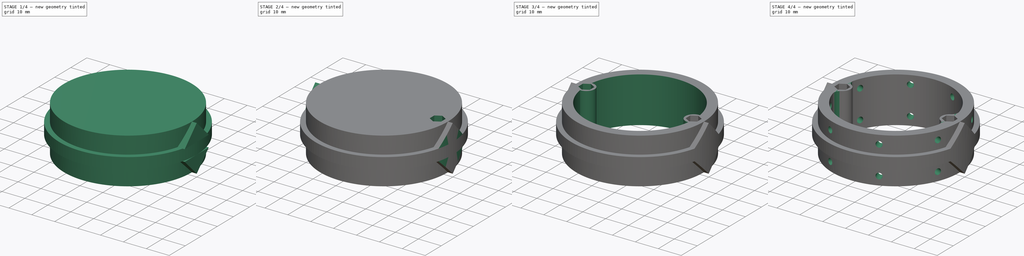
[diagram: build sequence overview — one tinted view per stage of 4, left to right]
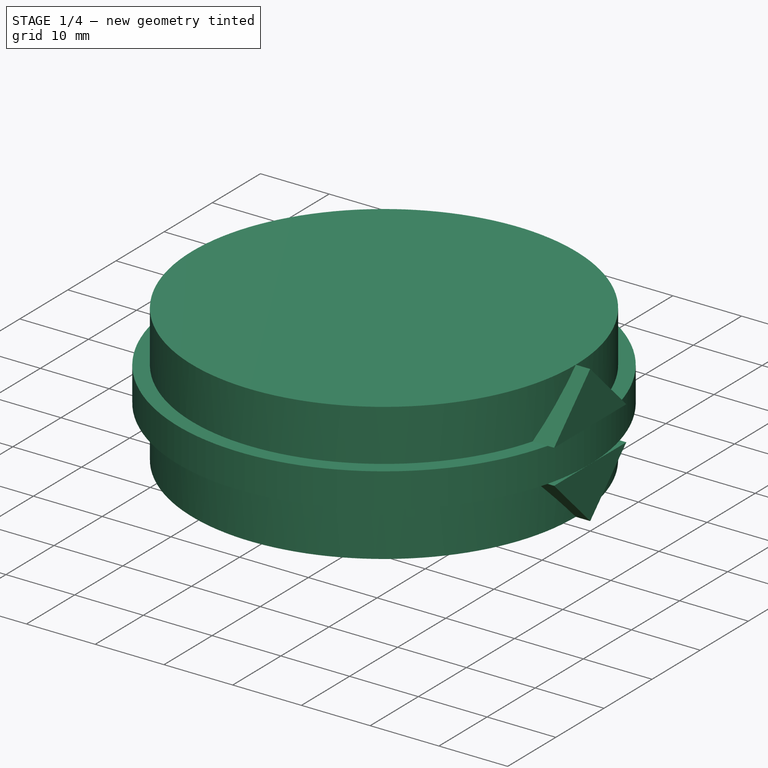
[diagram: stage 1 of 4 — iso view after this stage's code; geometry added in this stage tinted green]
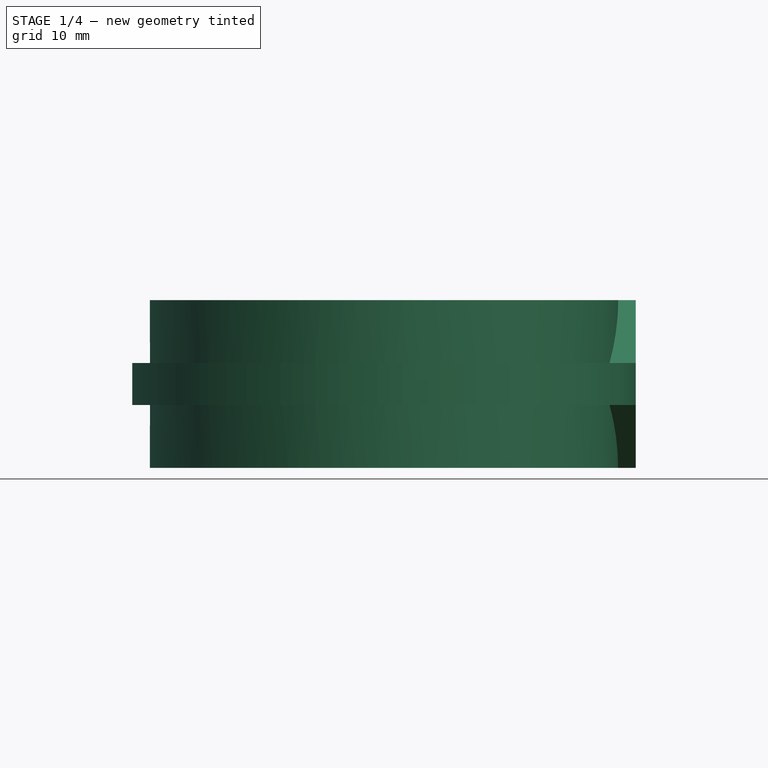
[diagram: stage 1 of 4 — front view after this stage's code; geometry added in this stage tinted green]
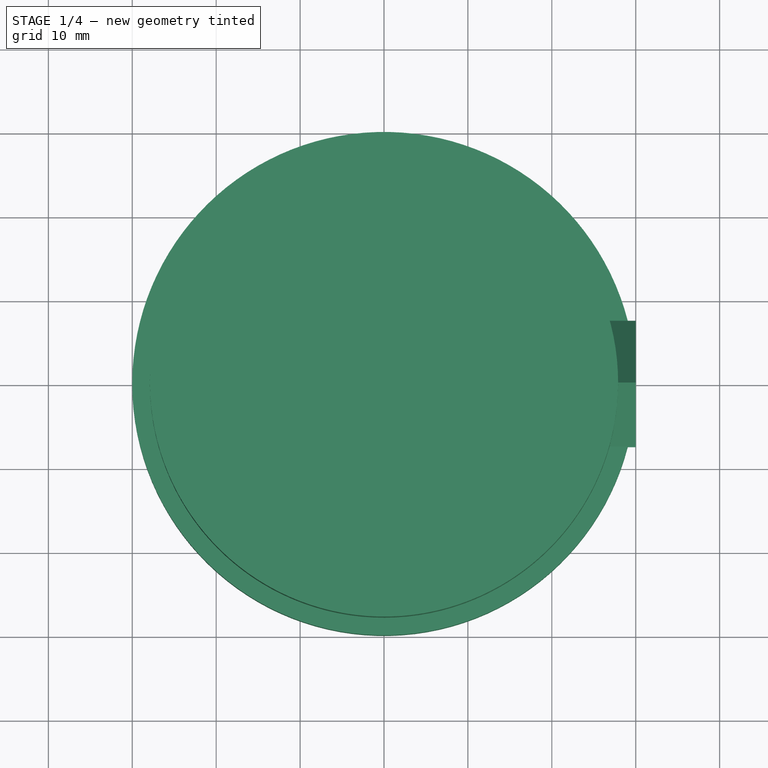
[diagram: stage 1 of 4 — top view after this stage's code; geometry added in this stage tinted green]
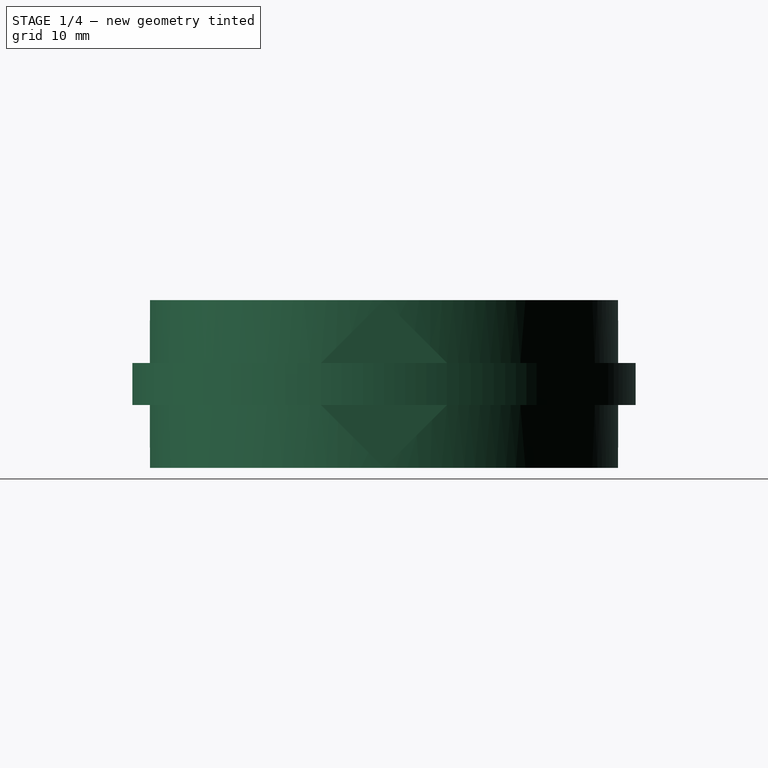
[diagram: stage 1 of 4 — right view after this stage's code; geometry added in this stage tinted green]
FCSTD DOCUMENT  (FreeCAD 1.0R39319 (Git))
Label: mid_closure
License: All rights reserved
objects: Sketcher::SketchObject×12, PartDesign::Pocket×6, PartDesign::Pad×4, PartDesign::Plane×3, PartDesign::PolarPattern×3, PartDesign::Fillet×1, PartDesign::Body×1
note: 67 computed .brp shape members not serialized (recipe doc carries the construction recipe); baked Part::Feature solids carry a one-line shape summary decoded from their .brp

FEATURE [Sketcher::SketchObject] Sketch
  ArcFitTolerance = 1e-06
  AttachmentSupport = -> [XY_Plane]
  FullyConstrained = true
  MakeInternals = false
  MapMode = 5
  sketch-geometry (1):
    g0: Circle CenterX=0 CenterY=0 CenterZ=0 NormalX=0 NormalY=0 NormalZ=1 AngleXU=0 Radius=30
  constraints (2):
    c: Diameter(g0) = 60
    c: Coincident(g0,g-1)
FEATURE [PartDesign::Pad] Pad  label="external_ring"
  Direction = (0,0,1)
  Length = 5
  Length2 = 10
  Profile = -> Sketch
  ReferenceAxis = -> Sketch [N_Axis]
  Refine = true
  Suppressed = false
  Type = 0
FEATURE [Sketcher::SketchObject] Sketch001
  ArcFitTolerance = 1e-06
  AttachmentSupport = -> [Pad]
  FullyConstrained = true
  MakeInternals = false
  MapMode = 5
  Placement = pos=(0,0,0) rot=(1,0,0;3.14159rad)
  sketch-geometry (1):
    g0: Circle CenterX=0 CenterY=0 CenterZ=0 NormalX=0 NormalY=0 NormalZ=1 AngleXU=0 Radius=27.9
  constraints (2):
    c: Diameter(g0) = 55.8
    c: Coincident(g0,g-1)
FEATURE [PartDesign::Pad] Pad001  label="lower_coupling"
  BaseFeature = -> Pad
  Direction = (0,0,-1)
  Length = 7.5
  Length2 = 10
  Profile = -> Sketch001
  ReferenceAxis = -> Sketch001 [N_Axis]
  Refine = true
  Suppressed = false
  Type = 0
FEATURE [Sketcher::SketchObject] Sketch002
  ArcFitTolerance = 1e-06
  AttachmentSupport = -> [Pad001]
  FullyConstrained = true
  MakeInternals = false
  MapMode = 5
  Placement = pos=(0,0,5) rot=(0,0,1;0rad)
  sketch-geometry (1):
    g0: Circle CenterX=0 CenterY=0 CenterZ=0 NormalX=0 NormalY=0 NormalZ=1 AngleXU=0 Radius=27.9
  constraints (2):
    c: Diameter(g0) = 55.8
    c: Coincident(g0,g-1)
FEATURE [PartDesign::Pad] Pad002  label="upper_coupling"
  BaseFeature = -> Pad001
  Direction = (0,0,1)
  Length = 7.5
  Length2 = 10
  Profile = -> Sketch002
  ReferenceAxis = -> Sketch002 [N_Axis]
  Refine = true
  Suppressed = false
  Type = 0
FEATURE [Sketcher::SketchObject] Sketch003
  ArcFitTolerance = 1e-06
  AttachmentSupport = -> [Pad002]
  ExternalGeometry = -> [Pad002]
  FullyConstrained = true
  MakeInternals = false
  MapMode = 5
  Placement = pos=(0,0,5) rot=(0,0,1;0rad)
  sketch-geometry (1):
    g0: LineSegment StartX=0 StartY=0 StartZ=0 EndX=30 EndY=0 EndZ=0
  constraints (3):
    c: Coincident(g0,g-1)
    c: PointOnObject(g0,g-3)
    c: Horizontal(g0)
FEATURE [PartDesign::Plane] DatumPlane
  AttachmentSupport = -> [Sketch003,Pad002]
  Length = 70.7018
  MapMode = 7
  Placement = pos=(30,0,5) rot=(0.57735,-0.57735,-0.57735;2.0944rad)
  ResizeMode = 0
  Width = 60.9333
FEATURE [Sketcher::SketchObject] Sketch004
  ArcFitTolerance = 1e-06
  AttachmentSupport = -> [DatumPlane]
  ExternalGeometry = -> [Pad002]
  FullyConstrained = false
  MakeInternals = false
  MapMode = 5
  Placement = pos=(30,0,5) rot=(0.57735,-0.57735,-0.57735;2.0944rad)
  sketch-geometry (6):
    g0: LineSegment StartX=-7.5 StartY=0 StartZ=0 EndX=8e-16 EndY=7.5 EndZ=0
    g1: LineSegment StartX=7e-16 StartY=7.5 StartZ=0 EndX=7.5 EndY=5e-16 EndZ=0
    g2: LineSegment StartX=7.5 StartY=5e-16 StartZ=0 EndX=-7.5 EndY=0 EndZ=0
    g3: LineSegment StartX=-7.5 StartY=-5 StartZ=0 EndX=7.5 EndY=-5 EndZ=0
    g4: LineSegment StartX=7.5 StartY=-5 StartZ=0 EndX=-8e-16 EndY=-12.5 EndZ=0
    g5: LineSegment StartX=-8e-16 StartY=-12.5 StartZ=0 EndX=-7.5 EndY=-5 EndZ=0
  constraints (13):
    c: PointOnObject(g0,g-6)
    c: Symmetric(g-5,g-5,g0)
    c: Coincident(g1,g2)
    c: Coincident(g2,g0)
    c: Symmetric(g0,g1,g-2)
    c: PointOnObject(g3,g-4)
    c: Coincident(g3,g4)
    c: Symmetric(g-3,g-3,g4)
    c: Coincident(g4,g5)
    c: Coincident(g5,g3)
    c: Symmetric(g3,g3,g-2)
    c: DistanceX(g0,g-1) = 7.5
    c: DistanceX(g3,g-1) = 7.5
FEATURE [PartDesign::Pad] Pad003
  BaseFeature = -> Pad002
  Direction = (-1,0,0)
  Length = 4
  Length2 = 10
  Profile = -> Sketch004
  ReferenceAxis = -> Sketch004 [N_Axis]
  Refine = true
  Suppressed = false
  Type = 0
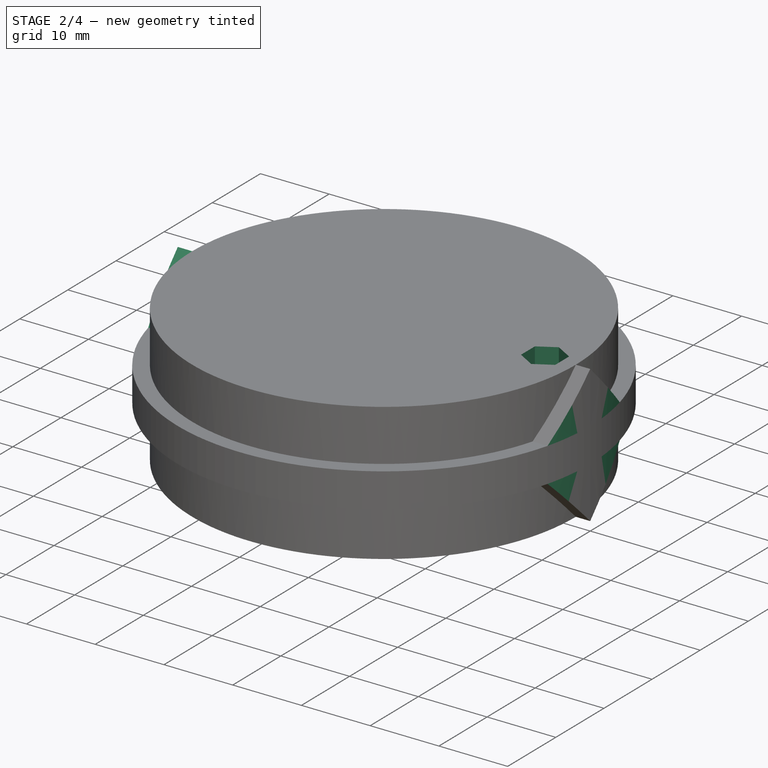
[diagram: stage 2 of 4 — iso view after this stage's code; geometry added in this stage tinted green]
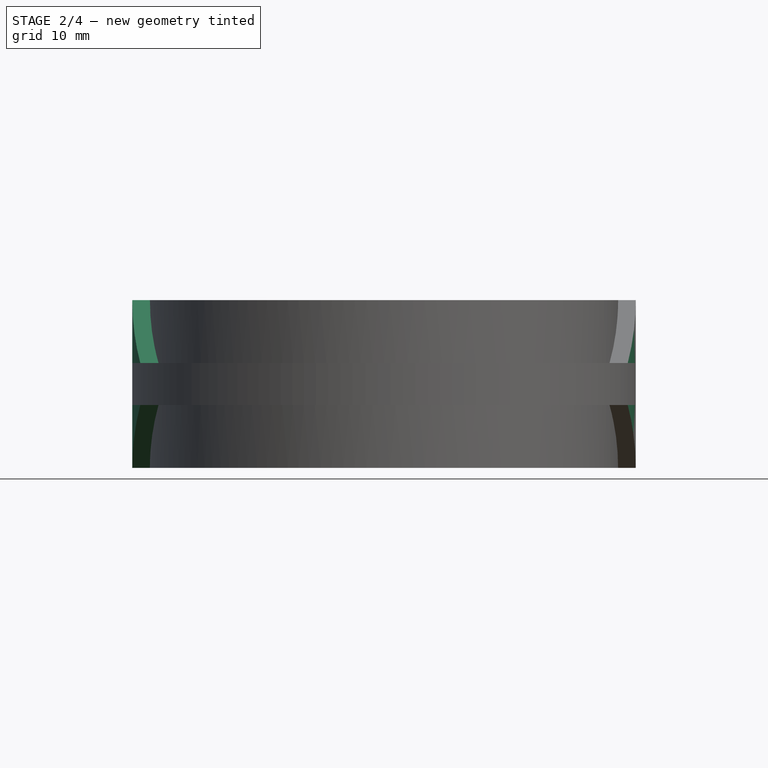
[diagram: stage 2 of 4 — front view after this stage's code; geometry added in this stage tinted green]
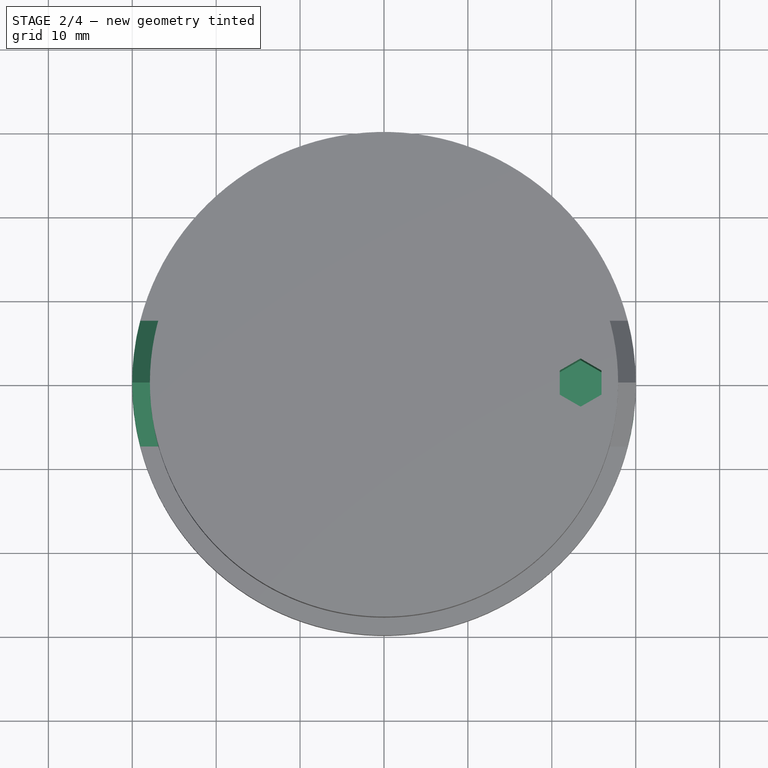
[diagram: stage 2 of 4 — top view after this stage's code; geometry added in this stage tinted green]
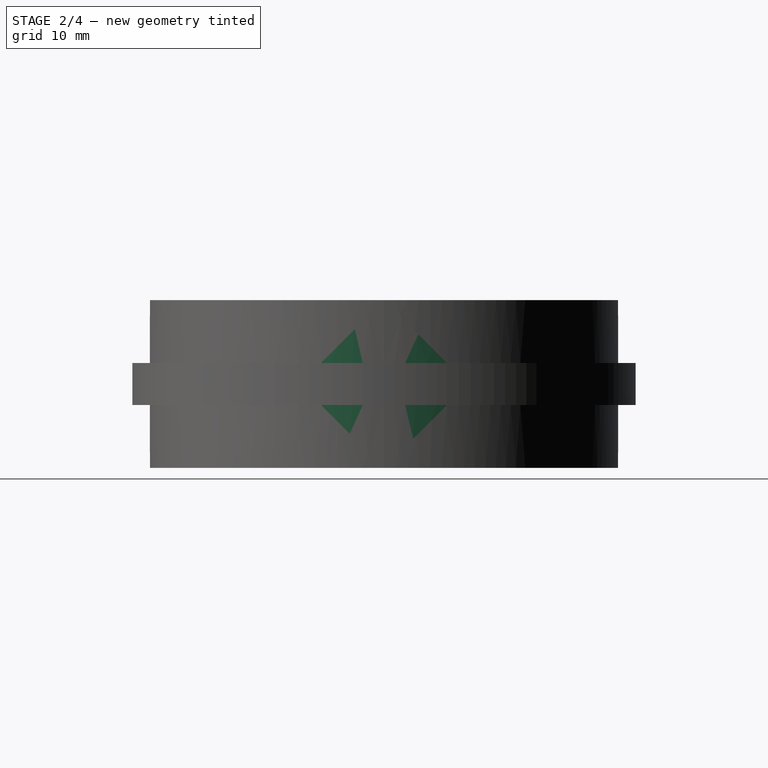
[diagram: stage 2 of 4 — right view after this stage's code; geometry added in this stage tinted green]
FEATURE [PartDesign::PolarPattern] PolarPattern
  Angle = 360
  Axis = -> Z_Axis
  BaseFeature = -> Pad003
  Mode = 0
  Occurrences = 2
  Offset = 120
  Originals = -> [Pad003]
  Refine = true
  Suppressed = false
  TransformMode = 0
FEATURE [Sketcher::SketchObject] Sketch005
  ArcFitTolerance = 1e-06
  AttachmentSupport = -> [PolarPattern]
  ExternalGeometry = -> [PolarPattern]
  FullyConstrained = false
  MakeInternals = false
  MapMode = 5
  Placement = pos=(0,0,12.5) rot=(0,0,1;0rad)
  sketch-geometry (2):
    g0: Circle CenterX=0 CenterY=0 CenterZ=0 NormalX=0 NormalY=0 NormalZ=1 AngleXU=0 Radius=30
    g1: Circle CenterX=0 CenterY=0 CenterZ=0 NormalX=0 NormalY=0 NormalZ=1 AngleXU=0 Radius=34.9161
  constraints (3):
    c: Coincident(g0,g-1)
    c: Tangent(g0,g-3)
    c: Coincident(g1,g0)
FEATURE [PartDesign::Pocket] Pocket
  BaseFeature = -> PolarPattern
  Direction = (0,0,-1)
  Length = 20
  Length2 = 5
  Profile = -> Sketch005
  ReferenceAxis = -> Sketch005 [N_Axis]
  Refine = true
  Suppressed = false
  Type = 0
FEATURE [Sketcher::SketchObject] Sketch006
  ArcFitTolerance = 1e-06
  AttachmentSupport = -> [Pocket]
  ExternalGeometry = -> [Pocket]
  FullyConstrained = false
  MakeInternals = false
  MapMode = 5
  Placement = pos=(0,0,12.5) rot=(0,0,1;0rad)
  sketch-geometry (10):
    g0: Circle [constr] CenterX=23.4279 CenterY=0 CenterZ=0 NormalX=0 NormalY=0 NormalZ=1 AngleXU=0 Radius=2.875
    g1: LineSegment [constr] StartX=23.4279 StartY=3.62628 StartZ=0 EndX=23.4279 EndY=-3.2446 EndZ=0
    g2: Circle [constr] CenterX=23.4279 CenterY=2.875 CenterZ=0 NormalX=0 NormalY=0 NormalZ=1 AngleXU=0 Radius=2.875
    g3: Circle [constr] CenterX=23.4279 CenterY=-2.875 CenterZ=0 NormalX=0 NormalY=0 NormalZ=1 AngleXU=0 Radius=2.875
    g4: LineSegment StartX=23.4279 StartY=2.875 StartZ=0 EndX=20.9381 EndY=1.4375 EndZ=0
    g5: LineSegment StartX=20.9381 StartY=1.4375 StartZ=0 EndX=20.9381 EndY=-1.4375 EndZ=0
    g6: LineSegment StartX=20.9381 StartY=-1.4375 StartZ=0 EndX=23.4279 EndY=-2.875 EndZ=0
    g7: LineSegment StartX=23.4279 StartY=-2.875 StartZ=0 EndX=25.9177 EndY=-1.4375 EndZ=0
    g8: LineSegment StartX=25.9177 StartY=-1.4375 StartZ=0 EndX=25.9177 EndY=1.4375 EndZ=0
    g9: LineSegment StartX=25.9177 StartY=1.4375 StartZ=0 EndX=23.4279 EndY=2.875 EndZ=0
  constraints (27):
    c: Diameter(g0) = 5.75
    c: PointOnObject(g0,g-1)
    c: Distance(g0,g-1) = 23.4279
    c: Vertical(g1)
    c: PointOnObject(g0,g1)
    c: PointOnObject(g3,g0)
    c: PointOnObject(g3,g1)
    c: Tangent(g3,g-1)
    c: PointOnObject(g2,g1)
    c: PointOnObject(g2,g0)
    c: Tangent(g2,g3)
    c: Coincident(g4,g2)
    c: Coincident(g4,g5)
    c: Coincident(g5,g6)
    c: Coincident(g6,g3)
    c: Coincident(g6,g7)
    c: Coincident(g7,g8)
    c: Coincident(g8,g9)
    c: Coincident(g9,g4)
    c: PointOnObject(g4,g0)
    c: PointOnObject(g4,g2)
    c: PointOnObject(g5,g0)
    c: PointOnObject(g5,g3)
    c: PointOnObject(g7,g3)
    c: PointOnObject(g7,g0)
    c: PointOnObject(g8,g2)
    c: PointOnObject(g8,g0)
FEATURE [PartDesign::Pocket] Pocket001  label="sede_tondo_alluminio_inf"
  BaseFeature = -> Pocket
  Direction = (0,0,-1)
  Length = 12.5
  Length2 = 5
  Profile = -> Sketch006
  ReferenceAxis = -> Sketch006 [N_Axis]
  Refine = true
  Suppressed = false
  Type = 0
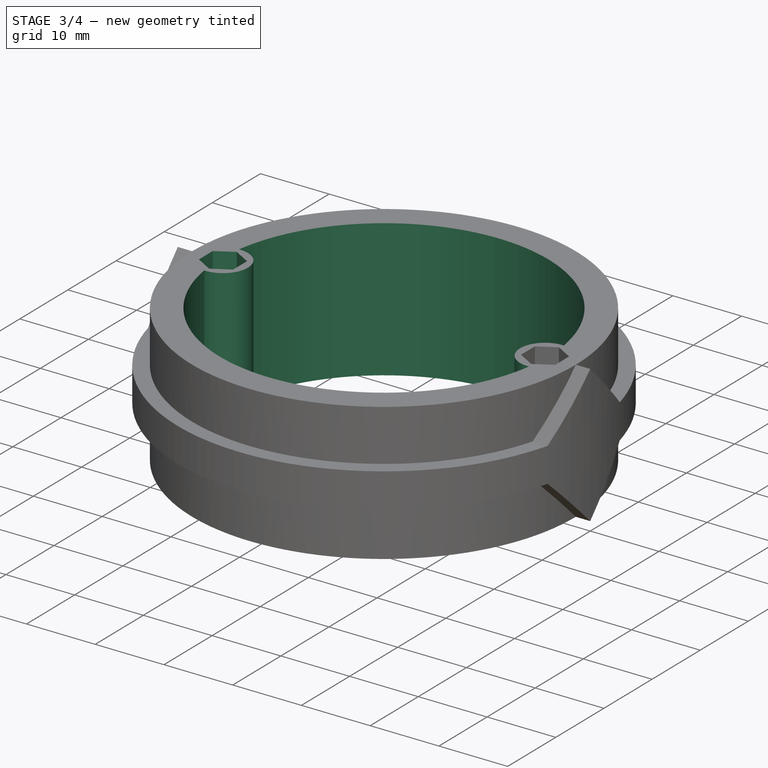
[diagram: stage 3 of 4 — iso view after this stage's code; geometry added in this stage tinted green]
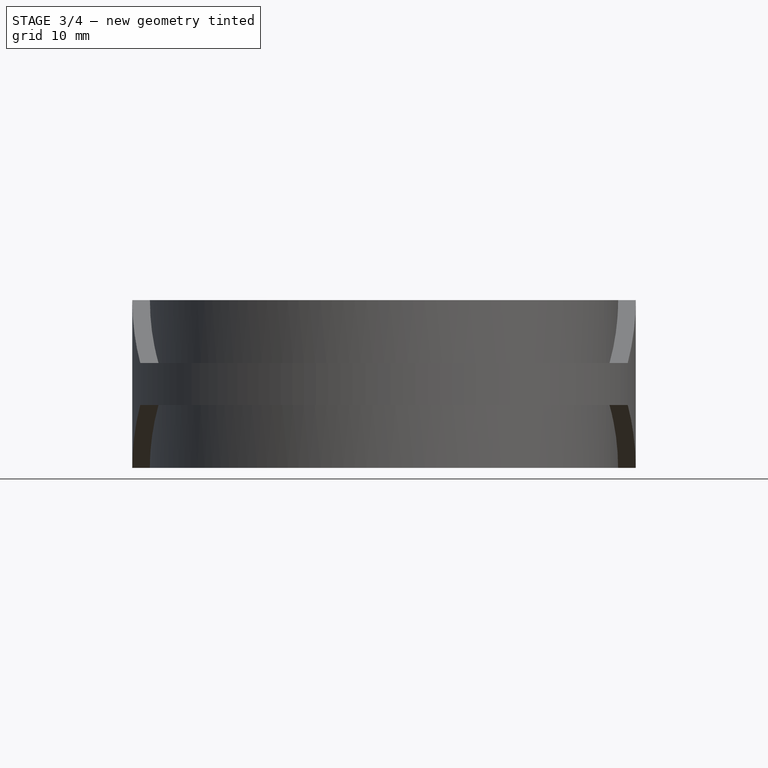
[diagram: stage 3 of 4 — front view after this stage's code; geometry added in this stage tinted green]
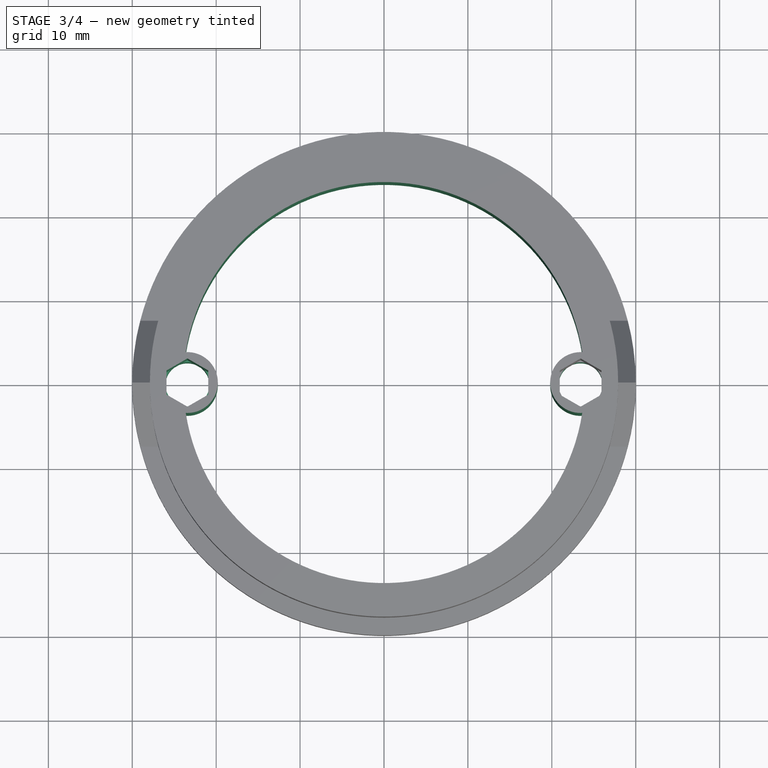
[diagram: stage 3 of 4 — top view after this stage's code; geometry added in this stage tinted green]
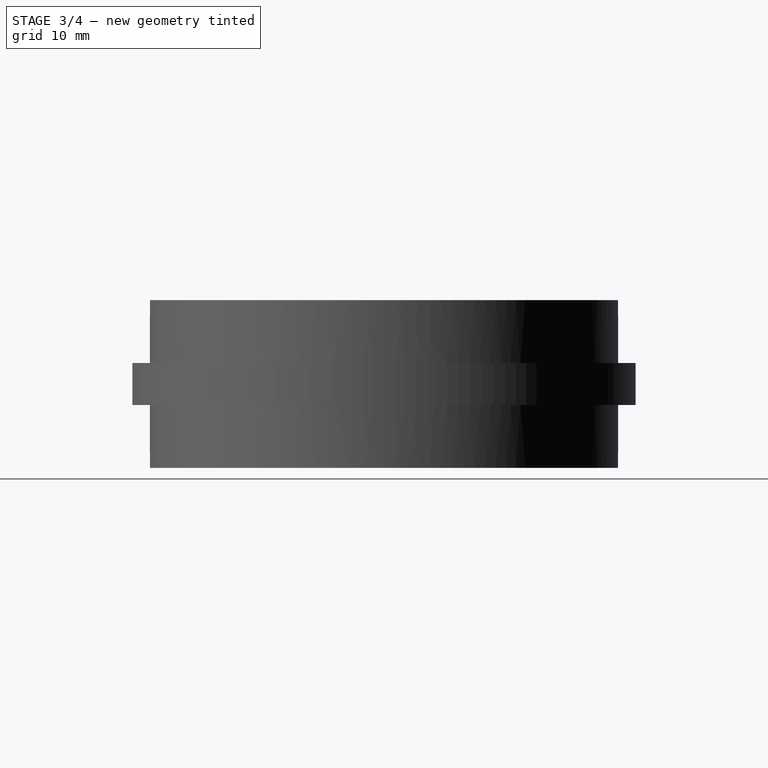
[diagram: stage 3 of 4 — right view after this stage's code; geometry added in this stage tinted green]
FEATURE [Sketcher::SketchObject] Sketch008
  ArcFitTolerance = 1e-06
  FullyConstrained = true
  MakeInternals = false
  MapMode = 5
  Placement = pos=(0,0,-7.5) rot=(1,0,0;3.14159rad)
  sketch-geometry (1):
    g0: Circle CenterX=23.4279 CenterY=0 CenterZ=0 NormalX=0 NormalY=0 NormalZ=1 AngleXU=0 Radius=2.625
  constraints (2):
    c: Diameter(g0) = 5.25
    c: Coincident(g0,g-3)
FEATURE [PartDesign::Pocket] Pocket003  label="sede_tondo_alluminio_sup"
  BaseFeature = -> Pocket001
  Direction = (0,1e-16,1)
  Length = 7.5
  Length2 = 5
  Profile = -> Sketch008
  ReferenceAxis = -> Sketch008 [N_Axis]
  Refine = true
  Suppressed = false
  Type = 0
FEATURE [PartDesign::PolarPattern] PolarPattern001
  Angle = 360
  Axis = -> Sketch006 [N_Axis]
  BaseFeature = -> Pocket003
  Mode = 0
  Occurrences = 2
  Offset = 120
  Originals = -> [Pocket001,Pocket003]
  Refine = true
  Suppressed = false
  TransformMode = 0
FEATURE [Sketcher::SketchObject] Sketch009
  ArcFitTolerance = 1e-06
  AttachmentSupport = -> [PolarPattern001]
  ExternalGeometry = -> [PolarPattern001]
  FullyConstrained = true
  MakeInternals = false
  MapMode = 5
  Placement = pos=(0,0,-7.5) rot=(1,0,0;3.14159rad)
  sketch-geometry (4):
    g0: ArcOfCircle CenterX=0 CenterY=0 CenterZ=0 NormalX=0 NormalY=0 NormalZ=1 AngleXU=0 Radius=23.9 StartAngle=3.29363 EndAngle=6.13115
    g1: ArcOfCircle CenterX=-23.4279 CenterY=0 CenterZ=0 NormalX=0 NormalY=0 NormalZ=1 AngleXU=0 Radius=3.625 StartAngle=4.65818 EndAngle=7.90819
    g2: ArcOfCircle CenterX=23.4279 CenterY=0 CenterZ=0 NormalX=0 NormalY=0 NormalZ=1 AngleXU=0 Radius=3.625 StartAngle=1.51659 EndAngle=4.7666
    g3: ArcOfCircle CenterX=0 CenterY=0 CenterZ=0 NormalX=0 NormalY=0 NormalZ=1 AngleXU=0 Radius=23.9 StartAngle=0.152036 EndAngle=2.98956
  constraints (12):
    c: Diameter(g0) = 47.8
    c: Coincident(g0,g-1)
    c: Diameter(g1) = 7.25
    c: Coincident(g1,g-4)
    c: Diameter(g2) = 7.25
    c: Coincident(g2,g-5)
    c: Coincident(g3,g1)
    c: Coincident(g0,g1)
    c: Equal(g0,g3)
    c: Coincident(g0,g3)
    c: Coincident(g2,g0)
    c: Coincident(g2,g3)
FEATURE [PartDesign::Pocket] Pocket004
  BaseFeature = -> PolarPattern001
  Direction = (0,0,1)
  Length = 5
  Length2 = 5
  Profile = -> Sketch009
  ReferenceAxis = -> Sketch009 [N_Axis]
  Refine = true
  Suppressed = false
  Type = 1
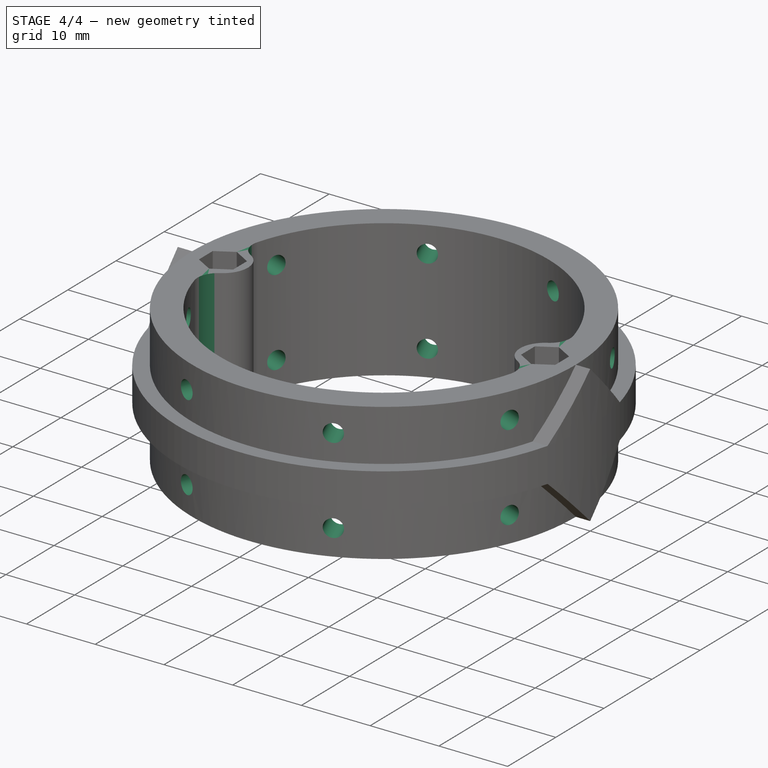
[diagram: stage 4 of 4 — iso view after this stage's code; geometry added in this stage tinted green]
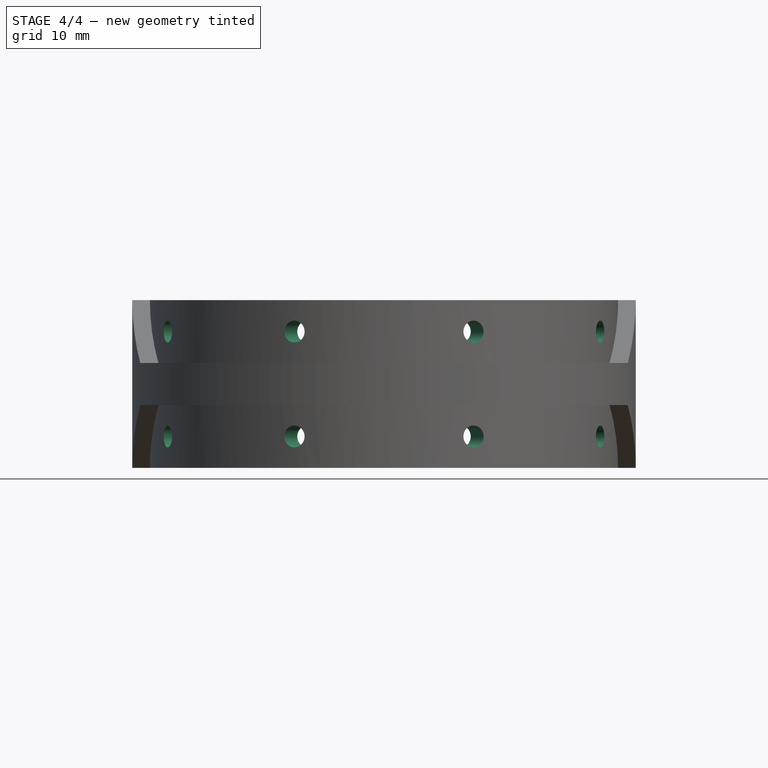
[diagram: stage 4 of 4 — front view after this stage's code; geometry added in this stage tinted green]
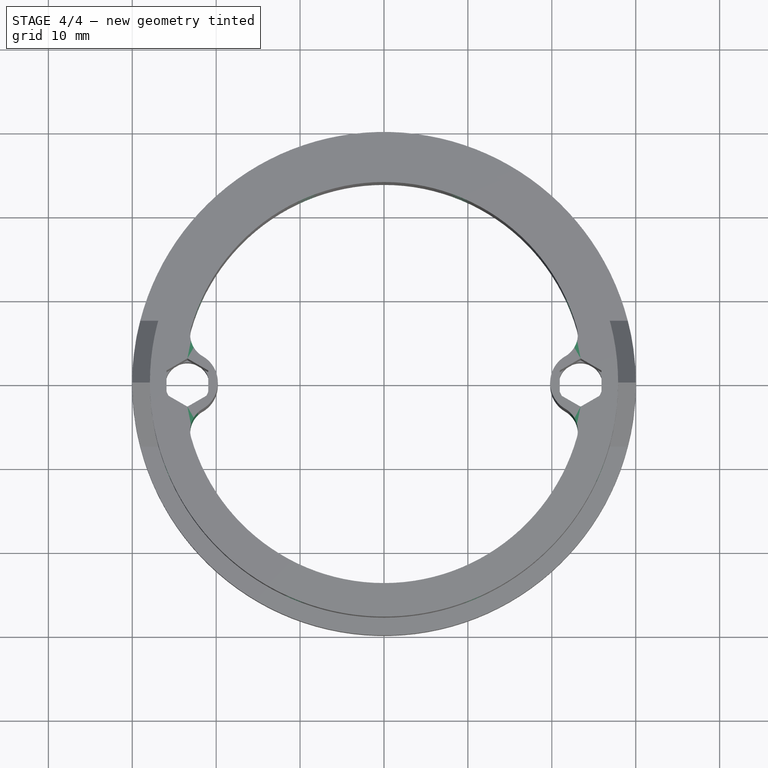
[diagram: stage 4 of 4 — top view after this stage's code; geometry added in this stage tinted green]
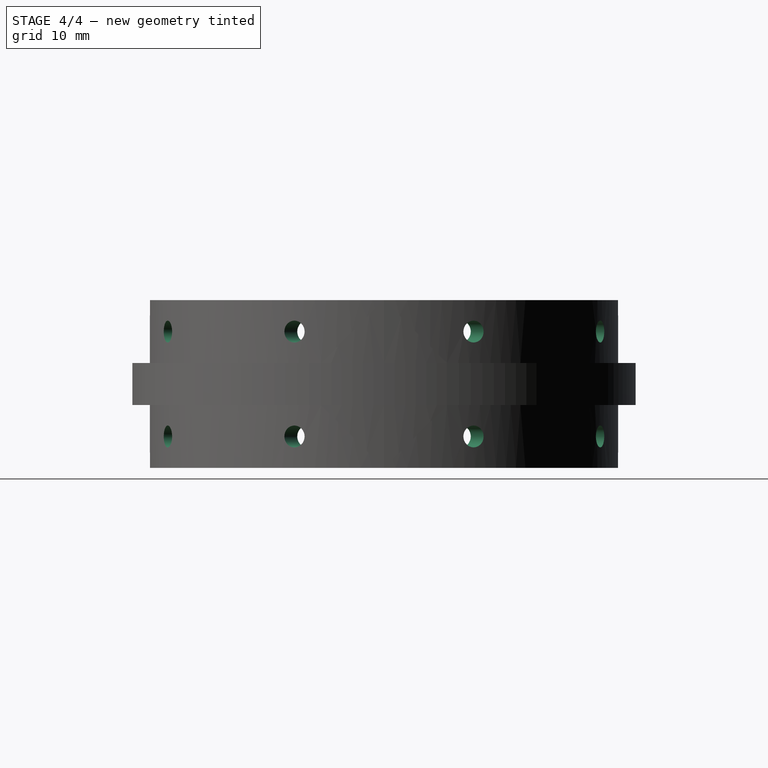
[diagram: stage 4 of 4 — right view after this stage's code; geometry added in this stage tinted green]
FEATURE [PartDesign::Fillet] Fillet
  Base = -> Pocket004 [Edge93,Edge92,Edge91,Edge90]
  BaseFeature = -> Pocket004
  Radius = 3
  Refine = true
  SupportTransform = false
  Suppressed = false
  UseAllEdges = false
FEATURE [Sketcher::SketchObject] Sketch010
  ArcFitTolerance = 1e-06
  AttachmentSupport = -> [Fillet]
  ExternalGeometry = -> [Fillet]
  FullyConstrained = true
  MakeInternals = false
  MapMode = 5
  Placement = pos=(0,0,-7.5) rot=(1,0,0;3.14159rad)
  sketch-geometry (3):
    g0: LineSegment StartX=0 StartY=0 StartZ=0 EndX=10.6769 EndY=25.7762 EndZ=0
    g1: LineSegment StartX=0 StartY=0 StartZ=0 EndX=25.7762 EndY=10.6769 EndZ=0
    g2: LineSegment [constr] StartX=0 StartY=0 StartZ=0 EndX=19.7283 EndY=19.7283 EndZ=0
  constraints (9):
    c: Coincident(g0,g-1)
    c: PointOnObject(g0,g-3)
    c: Coincident(g1,g0)
    c: PointOnObject(g1,g-3)
    c: Coincident(g2,g0)
    c: PointOnObject(g2,g-3)
    c: Angle(g-1,g2) = 0.785398
    c: Angle(g1,g0) = 0.785398
    c: Angle(g2,g0) = 0.392699
FEATURE [PartDesign::Plane] DatumPlane001
  AttachmentSupport = -> [Sketch010]
  Length = 90.6843
  MapMode = 7
  Placement = pos=(25.7762,-10.6769,-7.5) rot=(-0.427192,0.639338,0.639338;3.94904rad)
  ResizeMode = 0
  Width = 62.5044
FEATURE [PartDesign::Plane] DatumPlane002
  AttachmentSupport = -> [Sketch010]
  Length = 90.8196
  MapMode = 7
  Placement = pos=(10.6769,-25.7762,-7.5) rot=(-0.139281,0.700215,0.700215;3.41838rad)
  ResizeMode = 0
  Width = 62.5144
FEATURE [Sketcher::SketchObject] Sketch011
  ArcFitTolerance = 1e-06
  AttachmentSupport = -> [DatumPlane001]
  ExternalGeometry = -> [Fillet]
  FullyConstrained = true
  MakeInternals = false
  MapMode = 5
  Placement = pos=(25.7762,-10.6769,-7.5) rot=(-0.427192,0.639338,0.639338;3.94904rad)
  sketch-geometry (2):
    g0: Circle CenterX=0 CenterY=3.75 CenterZ=0 NormalX=0 NormalY=0 NormalZ=1 AngleXU=0 Radius=1.3
    g1: Circle CenterX=0 CenterY=16.25 CenterZ=0 NormalX=0 NormalY=0 NormalZ=1 AngleXU=0 Radius=1.3
  constraints (6):
    c: Diameter(g0) = 2.6
    c: PointOnObject(g0,g-2)
    c: Diameter(g1) = 2.6
    c: PointOnObject(g1,g-2)
    c: DistanceY(g-1,g0) = 3.75
    c: DistanceY(g1,g-3) = 3.75
FEATURE [PartDesign::Pocket] Pocket005  label="sede_viti_1"
  BaseFeature = -> Fillet
  Direction = (0.92388,-0.382683,-2e-16)
  Length = 5
  Length2 = 5
  Profile = -> Sketch011
  ReferenceAxis = -> Sketch011 [N_Axis]
  Refine = true
  Reversed = true
  Suppressed = false
  Type = 0
FEATURE [Sketcher::SketchObject] Sketch012
  ArcFitTolerance = 1e-06
  AttachmentSupport = -> [DatumPlane002]
  ExternalGeometry = -> [Pocket005]
  FullyConstrained = true
  MakeInternals = false
  MapMode = 5
  Placement = pos=(10.6769,-25.7762,-7.5) rot=(-0.139281,0.700215,0.700215;3.41838rad)
  sketch-geometry (2):
    g0: Circle CenterX=0 CenterY=16.25 CenterZ=0 NormalX=0 NormalY=0 NormalZ=1 AngleXU=0 Radius=1.3
    g1: Circle CenterX=0 CenterY=3.75 CenterZ=0 NormalX=0 NormalY=0 NormalZ=1 AngleXU=0 Radius=1.3
  constraints (6):
    c: Diameter(g0) = 2.6
    c: PointOnObject(g0,g-2)
    c: Diameter(g1) = 2.6
    c: PointOnObject(g1,g-2)
    c: Distance(g1,g-1) = 3.75
    c: DistanceY(g0,g-3) = 3.75
FEATURE [PartDesign::Pocket] Pocket006  label="sede_viti_2"
  BaseFeature = -> Pocket005
  Direction = (0.382683,-0.92388,-2e-16)
  Length = 5
  Length2 = 5
  Profile = -> Sketch012
  ReferenceAxis = -> Sketch012 [N_Axis]
  Refine = true
  Reversed = true
  Suppressed = false
  Type = 0
FEATURE [PartDesign::PolarPattern] PolarPattern002
  Angle = 360
  Axis = -> Z_Axis
  BaseFeature = -> Pocket006
  Mode = 0
  Occurrences = 4
  Offset = 120
  Originals = -> [Pocket005,Pocket006]
  Refine = true
  Suppressed = false
  TransformMode = 0
FEATURE [PartDesign::Body] Body
  AllowCompound = false
  Group = -> [Sketch,Pad,Sketch001,Pad001,Sketch002,Pad002,Sketch003,DatumPlane,Sketch004,Pad003,PolarPattern,Sketch005,Pocket,Sketch006,Pocket001,Sketch008,Pocket003,PolarPattern001,Sketch009,Pocket004,Fillet,Sketch010,DatumPlane001,DatumPlane002,Sketch011,Pocket005,Sketch012,Pocket006,PolarPattern002]
  Origin = -> Origin
  Tip = -> PolarPattern002
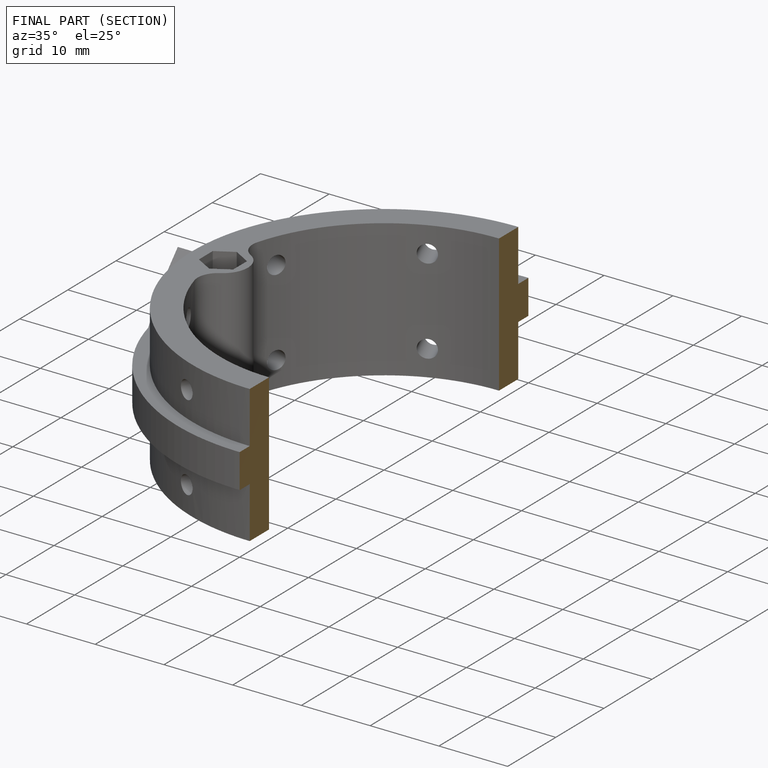
[diagram: finished part — half-section view (interior)]
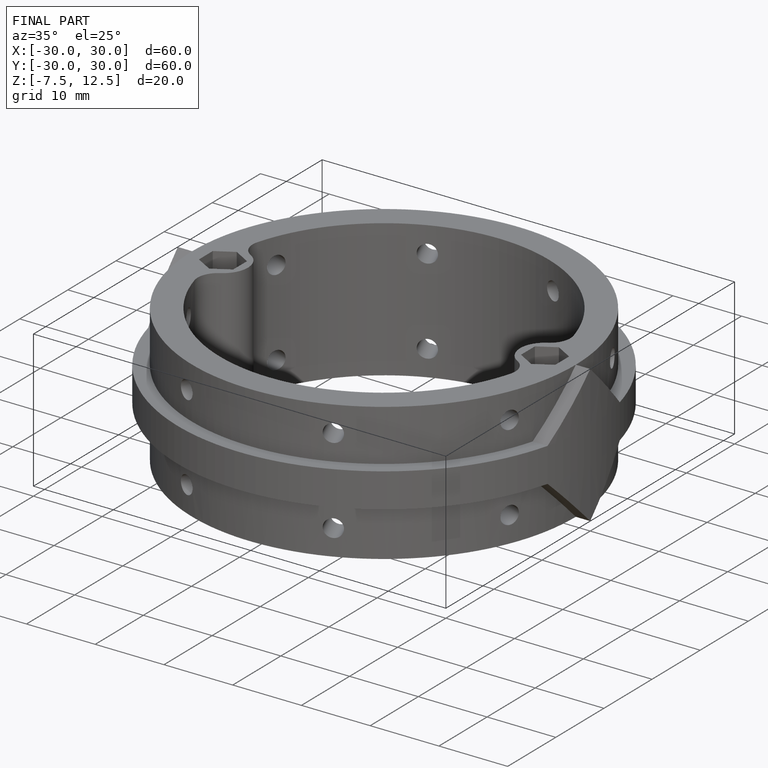
[diagram: finished part — iso view with bounding-box wireframe]
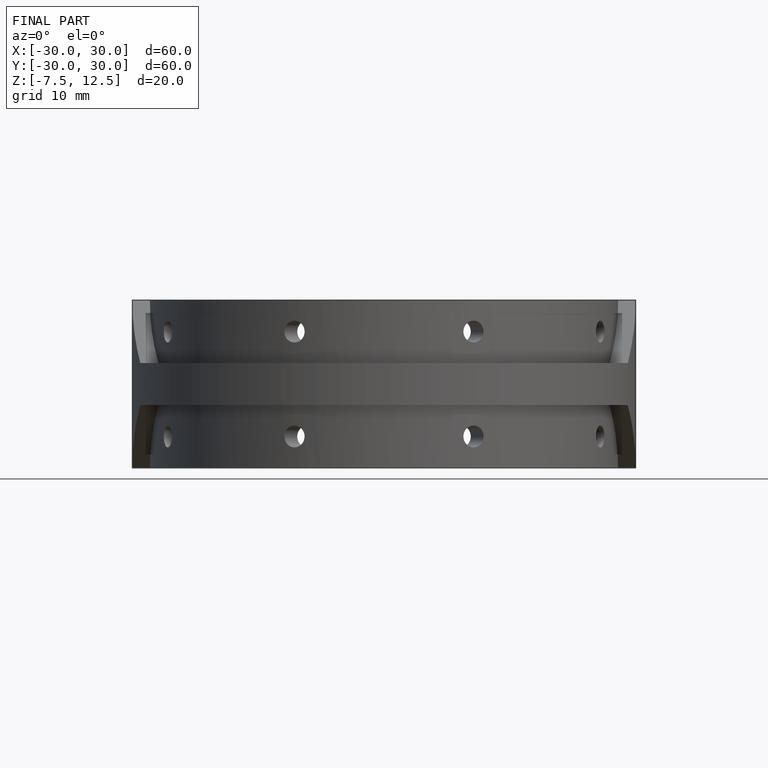
[diagram: finished part — front view with bounding-box wireframe]
